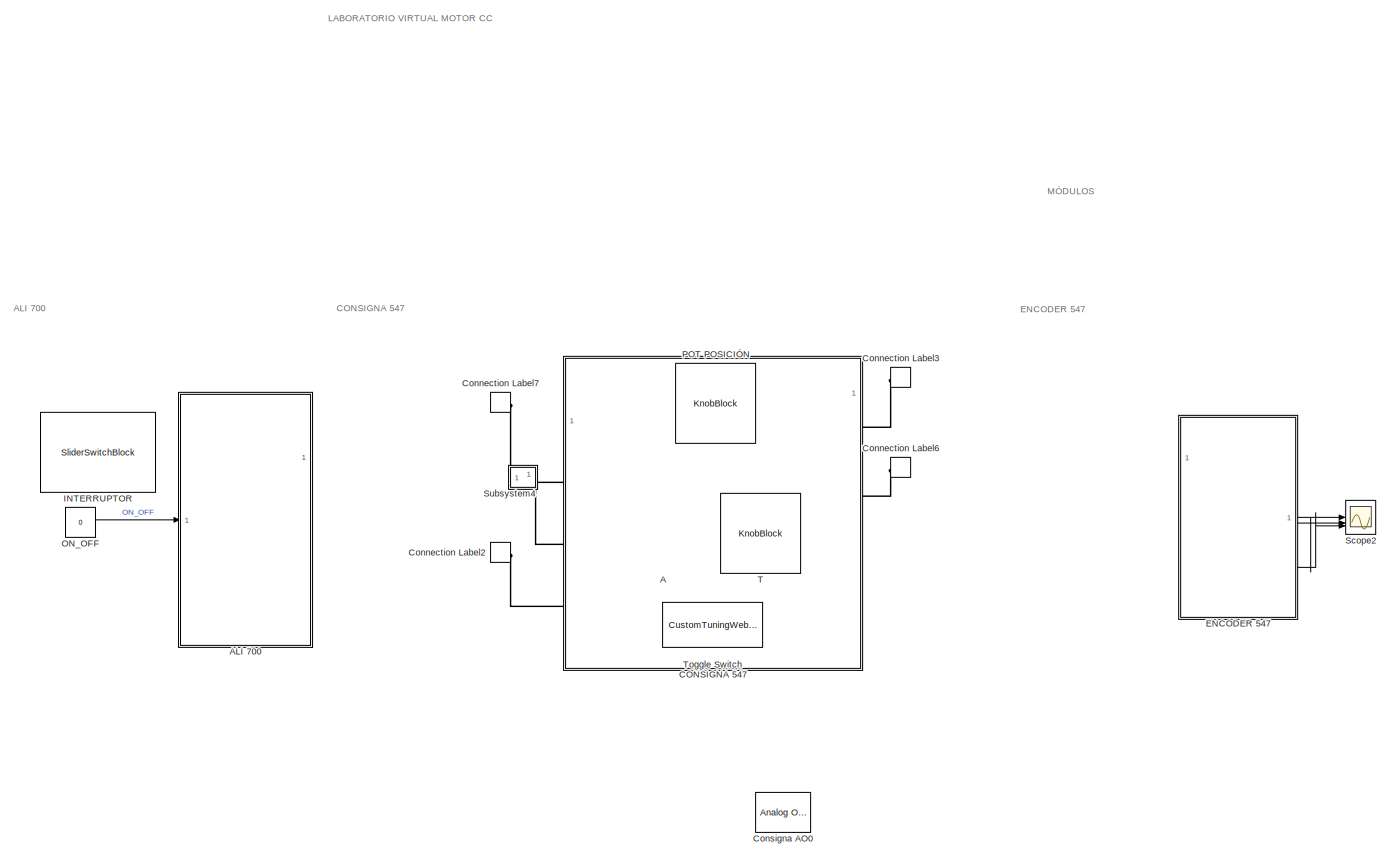
[diagram: root canvas - part 1/2, left side, full height]
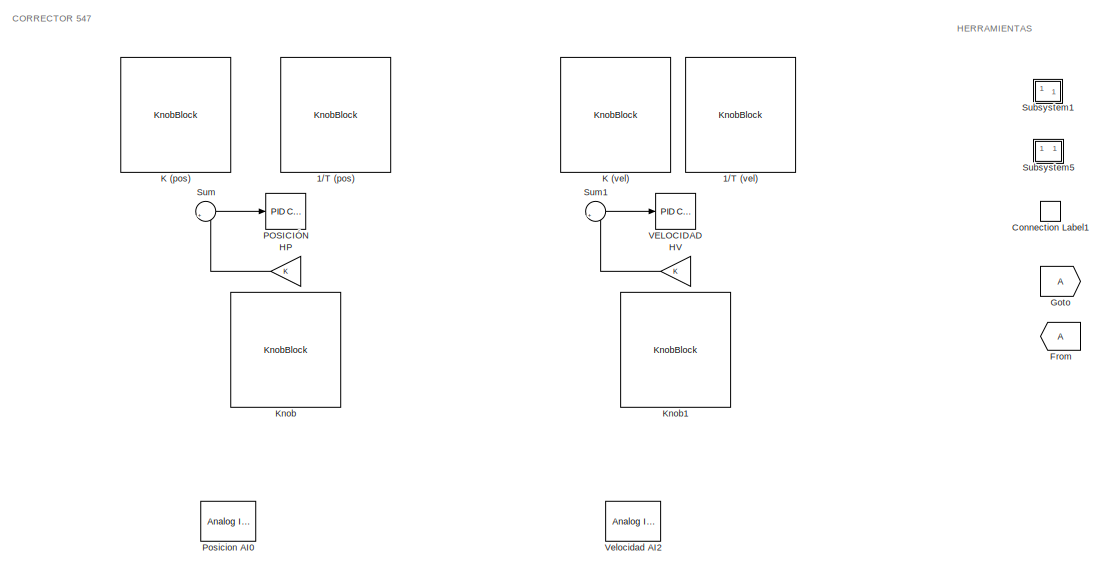
[diagram: root canvas - part 2/2, bottom right region]
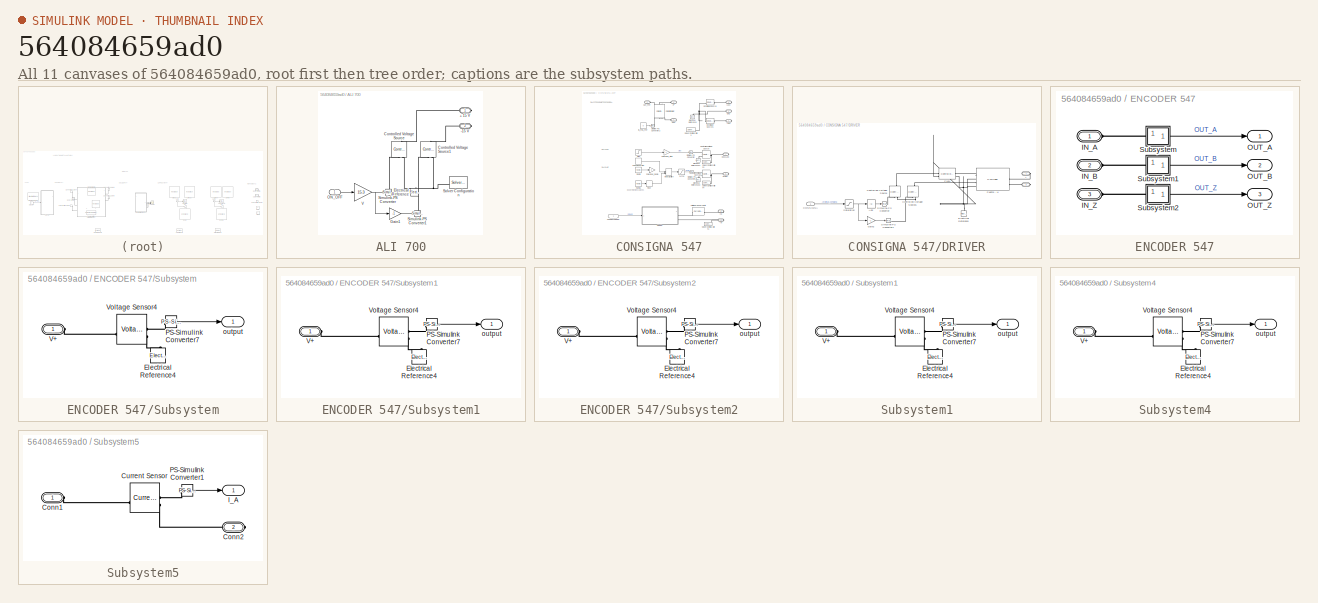
[diagram: thumbnail index - all 11 canvases of the model, root first then tree order]
MODEL slx_564084659ad0
KIND model
CONFIG AbsTol = auto
CONFIG EnableMultiTasking = off
CONFIG FixedStep = 0.0001
CONFIG MaxStep = 0.001
CONFIG MinStep = auto
CONFIG RelTol = auto
CONFIG SampleTimeConstraint = Unconstrained
CONFIG SolverName = VariableStepAuto
CONFIG StartTime = 0.0
CONFIG StopTime = 10
WORKSPACE source: mxarray member
WORKSPACE A = 5
WORKSPACE Frec = 1
WORKSPACE a = 1
BLOCK [KnobBlock] 1//T (pos)
  LabelPosition = Hide
  ScaleMax = 10
  TickInterval = 1
BLOCK [KnobBlock] 1//T (vel)
  LabelPosition = Hide
  ScaleMax = 10
  TickInterval = 1
BLOCK [KnobBlock] A
  LabelPosition = Hide
  ScaleMax = 10
  TickInterval = 1
BLOCK [SubSystem] ALI 700
BLOCK [PMIOPort] ALI 700/+ 15 V
  Side = Right
BLOCK [PMIOPort] ALI 700/-15 V
  Port = 2
  Side = Right
BLOCK [Reference] ALI 700/Controlled Voltage Source  REF=fl_lib/Electrical/Electrical Sources/Controlled Voltage
Source
  NameLocation = right
  SourceBlock = fl_lib/Electrical/Electrical Sources/Controlled Voltage\nSource
  SourceType = Controlled Voltage\nSource
BLOCK [Reference] ALI 700/Controlled Voltage Source1  REF=fl_lib/Electrical/Electrical Sources/Controlled Voltage
Source
  NameLocation = right
  SourceBlock = fl_lib/Electrical/Electrical Sources/Controlled Voltage\nSource
  SourceType = Controlled Voltage\nSource
BLOCK [Reference] ALI 700/Electrical Reference  REF=fl_lib/Electrical/Electrical Elements/Electrical Reference
  NameLocation = right
  SourceBlock = fl_lib/Electrical/Electrical Elements/Electrical Reference
  SourceType = Electrical Reference
BLOCK [Gain] ALI 700/Gain1
  Gain = -1
BLOCK [Inport] ALI 700/ON_OFF
BLOCK [Reference] ALI 700/Simulink-PS Converter  REF=nesl_utility/Simulink-PS
Converter
  SourceBlock = nesl_utility/Simulink-PS\nConverter
  SourceType = Simulink-PS\nConverter
BLOCK [Reference] ALI 700/Simulink-PS Converter1  REF=nesl_utility/Simulink-PS
Converter
  SourceBlock = nesl_utility/Simulink-PS\nConverter
  SourceType = Simulink-PS\nConverter
BLOCK [Reference] ALI 700/Solver Configuration  REF=nesl_utility/Solver
Configuration
  NameLocation = top
  SourceBlock = nesl_utility/Solver\nConfiguration
  SourceType = Solver\nConfiguration
BLOCK [Gain] ALI 700/V
  Gain = 15.3
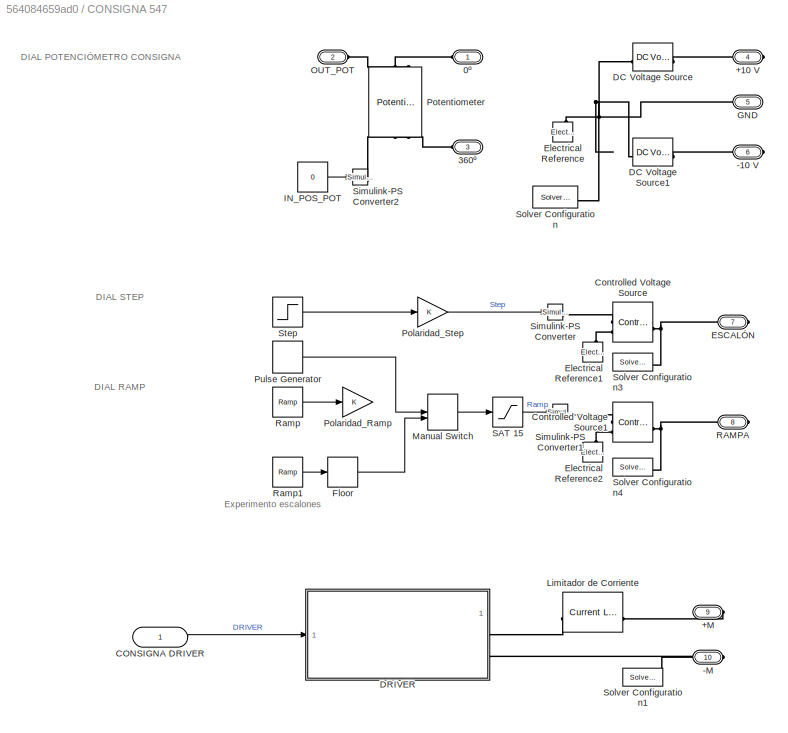
BLOCK [SubSystem] CONSIGNA 547
  PortSchema = {"entries":[{"content":{"sides":[{"content":{"connectorIds":["LConn1","LConn2","LConn3","In1"]},"type":"ConnectorPlacement.EquallySpacedRectSide","uuid":"4a8cfb57-dab5-486b-a591-dc2fea0d0b24"},{"content":{"connectorIds":["RConn1","RConn2","RConn3","RConn4","RConn5","RConn6","RConn7"],"side":"RIGHT"},"type":"ConnectorPlacement.EquallySpacedRectSide","uuid":"c23f5fb5-28b8-45c6-932c-b7e70ba2c44b"},{"...<+305ch>
BLOCK [PMIOPort] CONSIGNA 547/+10 V
  Port = 4
  Side = Right
BLOCK [PMIOPort] CONSIGNA 547/+M
  Port = 9
  Side = Right
BLOCK [PMIOPort] CONSIGNA 547/-10 V
  Port = 6
  Side = Right
BLOCK [PMIOPort] CONSIGNA 547/-M
  Port = 10
  Side = Right
BLOCK [PMIOPort] CONSIGNA 547/0º
  Side = Left
BLOCK [PMIOPort] CONSIGNA 547/360º
  Port = 3
  Side = Left
BLOCK [Inport] CONSIGNA 547/CONSIGNA  DRIVER
  IconDisplay = Signal name
BLOCK [Reference] CONSIGNA 547/Controlled Voltage Source  REF=fl_lib/Electrical/Electrical Sources/Controlled Voltage
Source
  SourceBlock = fl_lib/Electrical/Electrical Sources/Controlled Voltage\nSource
  SourceType = Controlled Voltage\nSource
BLOCK [Reference] CONSIGNA 547/Controlled Voltage Source1  REF=fl_lib/Electrical/Electrical Sources/Controlled Voltage
Source
  SourceBlock = fl_lib/Electrical/Electrical Sources/Controlled Voltage\nSource
  SourceType = Controlled Voltage\nSource
BLOCK [Reference] CONSIGNA 547/DC Voltage Source  REF=fl_lib/Electrical/Electrical Sources/DC Voltage Source
  SourceBlock = fl_lib/Electrical/Electrical Sources/DC Voltage Source
  SourceType = DC Voltage Source
BLOCK [Reference] CONSIGNA 547/DC Voltage Source1  REF=fl_lib/Electrical/Electrical Sources/DC Voltage Source
  SourceBlock = fl_lib/Electrical/Electrical Sources/DC Voltage Source
  SourceType = DC Voltage Source
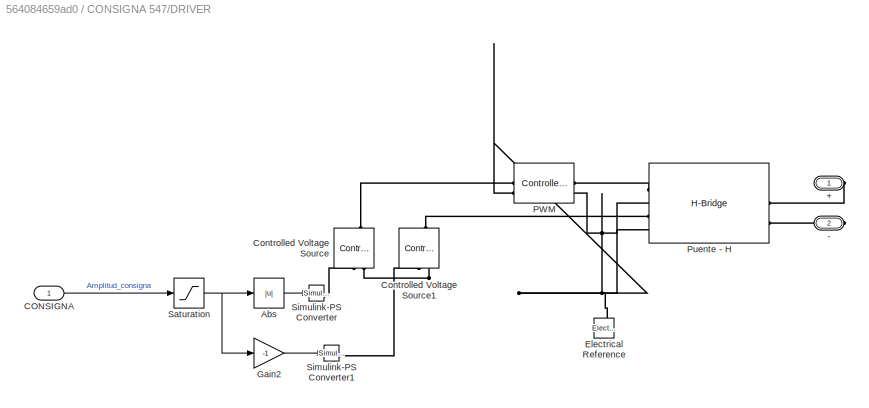
BLOCK [SubSystem] CONSIGNA 547/DRIVER
BLOCK [PMIOPort] CONSIGNA 547/DRIVER/+
  Side = Right
BLOCK [PMIOPort] CONSIGNA 547/DRIVER/-
  Port = 2
  Side = Right
BLOCK [Abs] CONSIGNA 547/DRIVER/Abs
  SaturateOnIntegerOverflow = off
BLOCK [Inport] CONSIGNA 547/DRIVER/CONSIGNA
BLOCK [Reference] CONSIGNA 547/DRIVER/Controlled Voltage Source  REF=fl_lib/Electrical/Electrical Sources/Controlled Voltage
Source
  NameLocation = right
  SourceBlock = fl_lib/Electrical/Electrical Sources/Controlled Voltage\nSource
  SourceType = Controlled Voltage\nSource
BLOCK [Reference] CONSIGNA 547/DRIVER/Controlled Voltage Source1  REF=fl_lib/Electrical/Electrical Sources/Controlled Voltage
Source
  NameLocation = right
  SourceBlock = fl_lib/Electrical/Electrical Sources/Controlled Voltage\nSource
  SourceType = Controlled Voltage\nSource
BLOCK [Reference] CONSIGNA 547/DRIVER/Electrical Reference  REF=fl_lib/Electrical/Electrical Elements/Electrical Reference
  NameLocation = right
  SourceBlock = fl_lib/Electrical/Electrical Elements/Electrical Reference
  SourceType = Electrical Reference
BLOCK [Gain] CONSIGNA 547/DRIVER/Gain2
  Gain = -1
BLOCK [Reference] CONSIGNA 547/DRIVER/PWM  REF=ee_lib/Integrated Circuits/Controlled PWM
Voltage
  NameLocation = top
  SourceBlock = ee_lib/Integrated Circuits/Controlled PWM\nVoltage
  SourceType = Controlled PWM\nVoltage
BLOCK [Reference] CONSIGNA 547/DRIVER/Puente - H  REF=ee_lib/Semiconductors &
Converters/Converters/H-Bridge
  NameLocation = top
  SourceBlock = ee_lib/Semiconductors &\nConverters/Converters/H-Bridge
  SourceType = H-Bridge
BLOCK [Saturate] CONSIGNA 547/DRIVER/Saturation
  LowerLimit = -PWM_sat
  UpperLimit = PWM_sat
BLOCK [Reference] CONSIGNA 547/DRIVER/Simulink-PS Converter  REF=nesl_utility/Simulink-PS
Converter
  SourceBlock = nesl_utility/Simulink-PS\nConverter
  SourceType = Simulink-PS\nConverter
BLOCK [Reference] CONSIGNA 547/DRIVER/Simulink-PS Converter1  REF=nesl_utility/Simulink-PS
Converter
  SourceBlock = nesl_utility/Simulink-PS\nConverter
  SourceType = Simulink-PS\nConverter
BLOCK [PMIOPort] CONSIGNA 547/ESCALÓN
  Port = 7
  Side = Right
BLOCK [Reference] CONSIGNA 547/Electrical Reference  REF=fl_lib/Electrical/Electrical Elements/Electrical Reference
  NameLocation = right
  SourceBlock = fl_lib/Electrical/Electrical Elements/Electrical Reference
  SourceType = Electrical Reference
BLOCK [Reference] CONSIGNA 547/Electrical Reference1  REF=fl_lib/Electrical/Electrical Elements/Electrical Reference
  NameLocation = right
  SourceBlock = fl_lib/Electrical/Electrical Elements/Electrical Reference
  SourceType = Electrical Reference
BLOCK [Reference] CONSIGNA 547/Electrical Reference2  REF=fl_lib/Electrical/Electrical Elements/Electrical Reference
  NameLocation = right
  SourceBlock = fl_lib/Electrical/Electrical Elements/Electrical Reference
  SourceType = Electrical Reference
BLOCK [Rounding] CONSIGNA 547/Floor
BLOCK [PMIOPort] CONSIGNA 547/GND
  Port = 5
  Side = Right
BLOCK [Constant] CONSIGNA 547/IN_POS_POT
  Value = 0
BLOCK [Reference] CONSIGNA 547/Limitador de Corriente  REF=ee_lib/Semiconductors &
Converters/Current Limiter
  NameLocation = top
  SourceBlock = ee_lib/Semiconductors &\nConverters/Current Limiter
  SourceType = Current Limiter
BLOCK [ManualSwitch] CONSIGNA 547/Manual Switch
BLOCK [PMIOPort] CONSIGNA 547/OUT_POT
  NameLocation = top
  Port = 2
  Side = Left
BLOCK [Gain] CONSIGNA 547/Polaridad_Ramp
BLOCK [Gain] CONSIGNA 547/Polaridad_Step
BLOCK [Reference] CONSIGNA 547/Potentiometer  REF=ee_lib/Passive/Potentiometer
  NameLocation = left
  SourceBlock = ee_lib/Passive/Potentiometer
  SourceType = Potentiometer
BLOCK [DiscretePulseGenerator] CONSIGNA 547/Pulse Generator
  Amplitude = 5
  Period = 3
  PulseType = Time based
  PulseWidth = 50
BLOCK [PMIOPort] CONSIGNA 547/RAMPA
  Port = 8
  Side = Right
BLOCK [Reference] CONSIGNA 547/Ramp  REF=simulink/Sources/Ramp
  SourceBlock = simulink/Sources/Ramp
  SourceType = Ramp
BLOCK [Reference] CONSIGNA 547/Ramp1  REF=simulink/Sources/Ramp
  SourceBlock = simulink/Sources/Ramp
  SourceType = Ramp
BLOCK [Saturate] CONSIGNA 547/SAT 15
  LowerLimit = -15
  UpperLimit = 15
BLOCK [Reference] CONSIGNA 547/Simulink-PS Converter  REF=nesl_utility/Simulink-PS
Converter
  SourceBlock = nesl_utility/Simulink-PS\nConverter
  SourceType = Simulink-PS\nConverter
BLOCK [Reference] CONSIGNA 547/Simulink-PS Converter1  REF=nesl_utility/Simulink-PS
Converter
  SourceBlock = nesl_utility/Simulink-PS\nConverter
  SourceType = Simulink-PS\nConverter
BLOCK [Reference] CONSIGNA 547/Simulink-PS Converter2  REF=nesl_utility/Simulink-PS
Converter
  SourceBlock = nesl_utility/Simulink-PS\nConverter
  SourceType = Simulink-PS\nConverter
BLOCK [Reference] CONSIGNA 547/Solver Configuration  REF=nesl_utility/Solver
Configuration
  SourceBlock = nesl_utility/Solver\nConfiguration
  SourceType = Solver\nConfiguration
BLOCK [Reference] CONSIGNA 547/Solver Configuration1  REF=nesl_utility/Solver
Configuration
  SourceBlock = nesl_utility/Solver\nConfiguration
  SourceType = Solver\nConfiguration
BLOCK [Reference] CONSIGNA 547/Solver Configuration3  REF=nesl_utility/Solver
Configuration
  SourceBlock = nesl_utility/Solver\nConfiguration
  SourceType = Solver\nConfiguration
BLOCK [Reference] CONSIGNA 547/Solver Configuration4  REF=nesl_utility/Solver
Configuration
  SourceBlock = nesl_utility/Solver\nConfiguration
  SourceType = Solver\nConfiguration
BLOCK [Step] CONSIGNA 547/Step
  After = 4.743883260091146
  SampleTime = 0
BLOCK [ConnectionLabel] Connection Label1
BLOCK [ConnectionLabel] Connection Label2
  Label = pot_pos_positivo
  NameLocation = top
BLOCK [ConnectionLabel] Connection Label3
  Label = pot_pos_positivo
BLOCK [ConnectionLabel] Connection Label6
  Label = pot_pos_negativo
BLOCK [ConnectionLabel] Connection Label7
  Label = pot_pos_negativo
  NameLocation = top
BLOCK [Reference] Consigna AO0  REF=sldrtlib/Analog Output
  AttributesFormatString = National Instruments\nPCIe-6321 [auto]
  SourceBlock = sldrtlib/Analog Output
  SourceType = Simulink Desktop Real-Time Analog Output
BLOCK [SubSystem] ENCODER 547
BLOCK [PMIOPort] ENCODER 547/IN_A
  Side = Left
BLOCK [PMIOPort] ENCODER 547/IN_B
  Port = 2
  Side = Left
BLOCK [PMIOPort] ENCODER 547/IN_Z
  Port = 3
  Side = Left
BLOCK [Outport] ENCODER 547/OUT_A
  NameLocation = right
BLOCK [Outport] ENCODER 547/OUT_B
  NameLocation = right
  Port = 2
BLOCK [Outport] ENCODER 547/OUT_Z
  NameLocation = right
  Port = 3
BLOCK [SubSystem] ENCODER 547/Subsystem
BLOCK [Reference] ENCODER 547/Subsystem/Electrical Reference4  REF=fl_lib/Electrical/Electrical Elements/Electrical Reference
  NameLocation = right
  SourceBlock = fl_lib/Electrical/Electrical Elements/Electrical Reference
  SourceType = Electrical Reference
BLOCK [Reference] ENCODER 547/Subsystem/PS-Simulink Converter7  REF=nesl_utility/PS-Simulink
Converter
  SourceBlock = nesl_utility/PS-Simulink\nConverter
  SourceType = PS-Simulink\nConverter
BLOCK [PMIOPort] ENCODER 547/Subsystem/V+
  Side = Left
BLOCK [Reference] ENCODER 547/Subsystem/Voltage Sensor4  REF=fl_lib/Electrical/Electrical Sensors/Voltage Sensor
  NameLocation = top
  SourceBlock = fl_lib/Electrical/Electrical Sensors/Voltage Sensor
  SourceType = Voltage Sensor
BLOCK [Outport] ENCODER 547/Subsystem/output
BLOCK [SubSystem] ENCODER 547/Subsystem1
BLOCK [Reference] ENCODER 547/Subsystem1/Electrical Reference4  REF=fl_lib/Electrical/Electrical Elements/Electrical Reference
  NameLocation = right
  SourceBlock = fl_lib/Electrical/Electrical Elements/Electrical Reference
  SourceType = Electrical Reference
BLOCK [Reference] ENCODER 547/Subsystem1/PS-Simulink Converter7  REF=nesl_utility/PS-Simulink
Converter
  SourceBlock = nesl_utility/PS-Simulink\nConverter
  SourceType = PS-Simulink\nConverter
BLOCK [PMIOPort] ENCODER 547/Subsystem1/V+
  Side = Left
BLOCK [Reference] ENCODER 547/Subsystem1/Voltage Sensor4  REF=fl_lib/Electrical/Electrical Sensors/Voltage Sensor
  NameLocation = top
  SourceBlock = fl_lib/Electrical/Electrical Sensors/Voltage Sensor
  SourceType = Voltage Sensor
BLOCK [Outport] ENCODER 547/Subsystem1/output
BLOCK [SubSystem] ENCODER 547/Subsystem2
BLOCK [Reference] ENCODER 547/Subsystem2/Electrical Reference4  REF=fl_lib/Electrical/Electrical Elements/Electrical Reference
  NameLocation = right
  SourceBlock = fl_lib/Electrical/Electrical Elements/Electrical Reference
  SourceType = Electrical Reference
BLOCK [Reference] ENCODER 547/Subsystem2/PS-Simulink Converter7  REF=nesl_utility/PS-Simulink
Converter
  SourceBlock = nesl_utility/PS-Simulink\nConverter
  SourceType = PS-Simulink\nConverter
BLOCK [PMIOPort] ENCODER 547/Subsystem2/V+
  Side = Left
BLOCK [Reference] ENCODER 547/Subsystem2/Voltage Sensor4  REF=fl_lib/Electrical/Electrical Sensors/Voltage Sensor
  NameLocation = top
  SourceBlock = fl_lib/Electrical/Electrical Sensors/Voltage Sensor
  SourceType = Voltage Sensor
BLOCK [Outport] ENCODER 547/Subsystem2/output
BLOCK [From] From
BLOCK [Goto] Goto
BLOCK [Gain] HP
BLOCK [Gain] HV
BLOCK [SliderSwitchBlock] INTERRUPTOR
  LabelPosition = Hide
BLOCK [KnobBlock] K (pos)
  LabelPosition = Hide
  ScaleMax = 10
  TickInterval = 1
BLOCK [KnobBlock] K (vel)
  LabelPosition = Hide
  ScaleMax = 10
  TickInterval = 1
BLOCK [KnobBlock] Knob
  LabelPosition = Hide
  ScaleMax = 1
  TickInterval = 0.1
BLOCK [KnobBlock] Knob1
  LabelPosition = Hide
  ScaleMax = 2
  TickInterval = 0.2
BLOCK [Constant] ON_OFF
  Value = 0
BLOCK [Reference] POSICIÓN  REF=slpidlib/PID Controller
  LibrarySourceBlock = simulink/Continuous/PID Controller
  SourceBlock = slpidlib/PID Controller
  SourceType = PID 1dof
BLOCK [KnobBlock] POT POSICIÓN
  LabelPosition = Hide
  ScaleMax = 360
  TickInterval = 20
BLOCK [Reference] Posicion AI0  REF=sldrtlib/Analog Input
  AttributesFormatString = National Instruments\nPCIe-6321 [auto]
  SourceBlock = sldrtlib/Analog Input
  SourceType = Simulink Desktop Real-Time Analog Input
BLOCK [Scope] Scope2
  Floating = off
  NumInputPorts = 3
  ScopeSpecificationString = Simulink.scopes.TimeScopeBlockCfg('CurrentConfiguration', extmgr.ConfigurationSet(extmgr.Configuration('Core','General UI',true),extmgr.Configuration('Core','Source UI',true),extmgr.Configuration('Sources','WiredSimulink',true,'DataLoggingVariableName','ScopeData1'),extmgr.Configuration('Visuals','Time Domain',true,'SerializedDisplays',{struct('MinYLimReal','-0.04325','MaxYLimReal','5.02351','YLab...<+1543ch>
BLOCK [SubSystem] Subsystem1
BLOCK [Reference] Subsystem1/Electrical Reference4  REF=fl_lib/Electrical/Electrical Elements/Electrical Reference
  NameLocation = right
  SourceBlock = fl_lib/Electrical/Electrical Elements/Electrical Reference
  SourceType = Electrical Reference
BLOCK [Reference] Subsystem1/PS-Simulink Converter7  REF=nesl_utility/PS-Simulink
Converter
  SourceBlock = nesl_utility/PS-Simulink\nConverter
  SourceType = PS-Simulink\nConverter
BLOCK [PMIOPort] Subsystem1/V+
  Side = Left
BLOCK [Reference] Subsystem1/Voltage Sensor4  REF=fl_lib/Electrical/Electrical Sensors/Voltage Sensor
  NameLocation = top
  SourceBlock = fl_lib/Electrical/Electrical Sensors/Voltage Sensor
  SourceType = Voltage Sensor
BLOCK [Outport] Subsystem1/output
BLOCK [SubSystem] Subsystem4
  NameLocation = top
BLOCK [Reference] Subsystem4/Electrical Reference4  REF=fl_lib/Electrical/Electrical Elements/Electrical Reference
  NameLocation = right
  SourceBlock = fl_lib/Electrical/Electrical Elements/Electrical Reference
  SourceType = Electrical Reference
BLOCK [Reference] Subsystem4/PS-Simulink Converter7  REF=nesl_utility/PS-Simulink
Converter
  SourceBlock = nesl_utility/PS-Simulink\nConverter
  SourceType = PS-Simulink\nConverter
BLOCK [PMIOPort] Subsystem4/V+
  Side = Left
BLOCK [Reference] Subsystem4/Voltage Sensor4  REF=fl_lib/Electrical/Electrical Sensors/Voltage Sensor
  NameLocation = top
  SourceBlock = fl_lib/Electrical/Electrical Sensors/Voltage Sensor
  SourceType = Voltage Sensor
BLOCK [Outport] Subsystem4/output
BLOCK [SubSystem] Subsystem5
  PortSchema = {"entries":[{"content":{"sides":[{"content":{"connectorIds":["LConn1"]},"type":"ConnectorPlacement.EquallySpacedRectSide","uuid":"5f01206e-22b9-410b-acd2-df307548d4ec"},{"content":{"connectorIds":["RConn1"],"side":"RIGHT"},"type":"ConnectorPlacement.EquallySpacedRectSide","uuid":"8e9acb11-d78e-4e8a-8f36-3c08acadde04"},{"content":{"side":"TOP"},"type":"ConnectorPlacement.EquallySpacedRectSide","uui...<+377ch>
BLOCK [PMIOPort] Subsystem5/Conn1
  Side = Left
BLOCK [PMIOPort] Subsystem5/Conn2
  Port = 2
  Side = Right
BLOCK [Reference] Subsystem5/Current Sensor  REF=fl_lib/Electrical/Electrical Sensors/Current Sensor
  SourceBlock = fl_lib/Electrical/Electrical Sensors/Current Sensor
  SourceType = Current Sensor
BLOCK [Outport] Subsystem5/I_A
BLOCK [Reference] Subsystem5/PS-Simulink Converter1  REF=nesl_utility/PS-Simulink
Converter
  SourceBlock = nesl_utility/PS-Simulink\nConverter
  SourceType = PS-Simulink\nConverter
BLOCK [Sum] Sum
  Inputs = |+-
BLOCK [Sum] Sum1
  Inputs = |+-
BLOCK [KnobBlock] T
  LabelPosition = Hide
  ScaleMax = 10
  TickInterval = 1
BLOCK [CustomTuningWebBlock] Toggle Switch
  Configuration = {"components":[{"name":"CustomSwitchStateComponent","settings":{"position":[0,0,1,1],"showAllLabels":1,"states":[{"HitRegion":{"position":[0.03,0,0.518,1]},"Image":{"position":[0.24928571428571428,0,1,0.5014285714285714],"size":[1,0.5014285714285714],"src":"data:image\/svg+xml;base64,PHN2ZyB4bWxucz0iaHR0cDovL3d3dy53My5vcmcvMjAwMC9zdmciIHhtbG5zOnhsaW5rPSJodHRwOi8vd3d3LnczLm9yZy8xOTk5L3hsaW5rIiB2aWV...<+9132ch>
  LabelPosition = Hide
  NameLocation = left
  ShowInitialText = on
BLOCK [Reference] VELOCIDAD  REF=slpidlib/PID Controller
  LibrarySourceBlock = simulink/Continuous/PID Controller
  SourceBlock = slpidlib/PID Controller
  SourceType = PID 1dof
BLOCK [Reference] Velocidad AI2  REF=sldrtlib/Analog Input
  AttributesFormatString = National Instruments\nPCIe-6321 [auto]
  SourceBlock = sldrtlib/Analog Input
  SourceType = Simulink Desktop Real-Time Analog Input
ANNOTATION (root): LABORATORIO VIRTUAL MOTOR CC
ANNOTATION (root): MÓDULOS
ANNOTATION (root): HERRAMIENTAS
ANNOTATION (root): ALI 700
ANNOTATION (root): CONSIGNA 547
ANNOTATION (root): CORRECTOR 547
ANNOTATION (root): ENCODER 547
ANNOTATION CONSIGNA 547: DIAL POTENCIÓMETRO CONSIGNA
ANNOTATION CONSIGNA 547: DIAL RAMP
ANNOTATION CONSIGNA 547: DIAL STEP
ANNOTATION CONSIGNA 547: Experimento escalones
LINE ALI 700/Gain1:1 -> ALI 700/Simulink-PS Converter1:1
LINE ALI 700/ON_OFF:1 -> ALI 700/V:1
NET ALI 700/V:1 -> ALI 700/Gain1:1, ALI 700/Simulink-PS Converter:1
LINE CONSIGNA 547/CONSIGNA  DRIVER:1 -> CONSIGNA 547/DRIVER:1
LINE CONSIGNA 547/DRIVER/Abs:1 -> CONSIGNA 547/DRIVER/Simulink-PS Converter:1
LINE CONSIGNA 547/DRIVER/CONSIGNA:1 -> CONSIGNA 547/DRIVER/Saturation:1
LINE CONSIGNA 547/DRIVER/Gain2:1 -> CONSIGNA 547/DRIVER/Simulink-PS Converter1:1
NET CONSIGNA 547/DRIVER/Saturation:1 -> CONSIGNA 547/DRIVER/Abs:1, CONSIGNA 547/DRIVER/Gain2:1
LINE CONSIGNA 547/Floor:1 -> CONSIGNA 547/Manual Switch:2
LINE CONSIGNA 547/IN_POS_POT:1 -> CONSIGNA 547/Simulink-PS Converter2:1
LINE CONSIGNA 547/Manual Switch:1 -> CONSIGNA 547/SAT 15:1
LINE CONSIGNA 547/Polaridad_Step:1 -> CONSIGNA 547/Simulink-PS Converter:1
LINE CONSIGNA 547/Pulse Generator:1 -> CONSIGNA 547/Manual Switch:1
LINE CONSIGNA 547/Ramp1:1 -> CONSIGNA 547/Floor:1
LINE CONSIGNA 547/Ramp:1 -> CONSIGNA 547/Polaridad_Ramp:1
LINE CONSIGNA 547/SAT 15:1 -> CONSIGNA 547/Simulink-PS Converter1:1
LINE CONSIGNA 547/Step:1 -> CONSIGNA 547/Polaridad_Step:1
LINE ENCODER 547/Subsystem/PS-Simulink Converter7:1 -> ENCODER 547/Subsystem/output:1
LINE ENCODER 547/Subsystem1/PS-Simulink Converter7:1 -> ENCODER 547/Subsystem1/output:1
LINE ENCODER 547/Subsystem1:1 -> ENCODER 547/OUT_B:1
LINE ENCODER 547/Subsystem2/PS-Simulink Converter7:1 -> ENCODER 547/Subsystem2/output:1
LINE ENCODER 547/Subsystem2:1 -> ENCODER 547/OUT_Z:1
LINE ENCODER 547/Subsystem:1 -> ENCODER 547/OUT_A:1
LINE ENCODER 547:1 -> Scope2:1
LINE ENCODER 547:2 -> Scope2:2
LINE ENCODER 547:3 -> Scope2:3
LINE HP:1 -> Sum:2
LINE HV:1 -> Sum1:2
LINE ON_OFF:1 -> ALI 700:1
LINE Subsystem1/PS-Simulink Converter7:1 -> Subsystem1/output:1
LINE Subsystem4/PS-Simulink Converter7:1 -> Subsystem4/output:1
LINE Subsystem5/PS-Simulink Converter1:1 -> Subsystem5/I_A:1
LINE Sum1:1 -> VELOCIDAD:1
LINE Sum:1 -> POSICIÓN:1
PLINE ALI 700/+ 15 V:RConn1 -- ALI 700/Controlled Voltage Source:LConn1
PLINE ALI 700/-15 V:RConn1 -- ALI 700/Controlled Voltage Source1:LConn1
PLINE ALI 700/Controlled Voltage Source1:RConn1 -- ALI 700/Simulink-PS Converter1:RConn1
PNET net1: ALI 700/Controlled Voltage Source1:RConn2 -- ALI 700/Controlled Voltage Source:RConn2 -- ALI 700/Electrical Reference:LConn1 -- ALI 700/Solver Configuration:RConn1
PLINE ALI 700/Controlled Voltage Source:RConn1 -- ALI 700/Simulink-PS Converter:RConn1
PLINE CONSIGNA 547/+10 V:RConn1 -- CONSIGNA 547/DC Voltage Source:LConn1
PLINE CONSIGNA 547/+M:RConn1 -- CONSIGNA 547/Limitador de Corriente:RConn1
PLINE CONSIGNA 547/-10 V:RConn1 -- CONSIGNA 547/DC Voltage Source1:LConn1
PNET net2: CONSIGNA 547/-M:RConn1 -- CONSIGNA 547/DRIVER:RConn2 -- CONSIGNA 547/Solver Configuration1:RConn1
PLINE CONSIGNA 547/0º:RConn1 -- CONSIGNA 547/Potentiometer:LConn1
PLINE CONSIGNA 547/360º:RConn1 -- CONSIGNA 547/Potentiometer:RConn1
PNET net3: CONSIGNA 547/Controlled Voltage Source1:LConn1 -- CONSIGNA 547/RAMPA:RConn1 -- CONSIGNA 547/Solver Configuration4:RConn1
PLINE CONSIGNA 547/Controlled Voltage Source1:RConn1 -- CONSIGNA 547/Simulink-PS Converter1:RConn1
PLINE CONSIGNA 547/Controlled Voltage Source1:RConn2 -- CONSIGNA 547/Electrical Reference2:LConn1
PNET net4: CONSIGNA 547/Controlled Voltage Source:LConn1 -- CONSIGNA 547/ESCALÓN:RConn1 -- CONSIGNA 547/Solver Configuration3:RConn1
PLINE CONSIGNA 547/Controlled Voltage Source:RConn1 -- CONSIGNA 547/Simulink-PS Converter:RConn1
PLINE CONSIGNA 547/Controlled Voltage Source:RConn2 -- CONSIGNA 547/Electrical Reference1:LConn1
PNET net5: CONSIGNA 547/DC Voltage Source1:RConn1 -- CONSIGNA 547/DC Voltage Source:RConn1 -- CONSIGNA 547/Electrical Reference:LConn1 -- CONSIGNA 547/GND:RConn1 -- CONSIGNA 547/Solver Configuration:RConn1
PLINE CONSIGNA 547/DRIVER/+:RConn1 -- CONSIGNA 547/DRIVER/Puente - H:RConn1
PLINE CONSIGNA 547/DRIVER/-:RConn1 -- CONSIGNA 547/DRIVER/Puente - H:RConn2
PLINE CONSIGNA 547/DRIVER/Controlled Voltage Source1:LConn1 -- CONSIGNA 547/DRIVER/Puente - H:LConn3
PLINE CONSIGNA 547/DRIVER/Controlled Voltage Source1:RConn1 -- CONSIGNA 547/DRIVER/Simulink-PS Converter1:RConn1
PNET net6: CONSIGNA 547/DRIVER/Controlled Voltage Source1:RConn2 -- CONSIGNA 547/DRIVER/Controlled Voltage Source:RConn2 -- CONSIGNA 547/DRIVER/Electrical Reference:LConn1 -- CONSIGNA 547/DRIVER/PWM:LConn2 -- CONSIGNA 547/DRIVER/PWM:RConn2 -- CONSIGNA 547/DRIVER/Puente - H:LConn2 -- CONSIGNA 547/DRIVER/Puente - H:LConn4
PLINE CONSIGNA 547/DRIVER/Controlled Voltage Source:LConn1 -- CONSIGNA 547/DRIVER/PWM:LConn1
PLINE CONSIGNA 547/DRIVER/Controlled Voltage Source:RConn1 -- CONSIGNA 547/DRIVER/Simulink-PS Converter:RConn1
PLINE CONSIGNA 547/DRIVER/PWM:RConn1 -- CONSIGNA 547/DRIVER/Puente - H:LConn1
PLINE CONSIGNA 547/DRIVER:RConn1 -- CONSIGNA 547/Limitador de Corriente:LConn1
PLINE CONSIGNA 547/OUT_POT:RConn1 -- CONSIGNA 547/Potentiometer:LConn2
PLINE CONSIGNA 547/Potentiometer:RConn2 -- CONSIGNA 547/Simulink-PS Converter2:RConn1
PLINE CONSIGNA 547:LConn1 -- Connection Label7:LConn1
PLINE CONSIGNA 547:LConn2 -- Subsystem4:LConn1
PLINE CONSIGNA 547:LConn3 -- Connection Label2:LConn1
PLINE CONSIGNA 547:RConn1 -- Connection Label3:LConn1
PLINE CONSIGNA 547:RConn3 -- Connection Label6:LConn1
PLINE ENCODER 547/IN_A:RConn1 -- ENCODER 547/Subsystem:LConn1
PLINE ENCODER 547/IN_B:RConn1 -- ENCODER 547/Subsystem1:LConn1
PLINE ENCODER 547/IN_Z:RConn1 -- ENCODER 547/Subsystem2:LConn1
PLINE ENCODER 547/Subsystem/Electrical Reference4:LConn1 -- ENCODER 547/Subsystem/Voltage Sensor4:RConn2
PLINE ENCODER 547/Subsystem/PS-Simulink Converter7:LConn1 -- ENCODER 547/Subsystem/Voltage Sensor4:RConn1
PLINE ENCODER 547/Subsystem/V+:RConn1 -- ENCODER 547/Subsystem/Voltage Sensor4:LConn1
PLINE ENCODER 547/Subsystem1/Electrical Reference4:LConn1 -- ENCODER 547/Subsystem1/Voltage Sensor4:RConn2
PLINE ENCODER 547/Subsystem1/PS-Simulink Converter7:LConn1 -- ENCODER 547/Subsystem1/Voltage Sensor4:RConn1
PLINE ENCODER 547/Subsystem1/V+:RConn1 -- ENCODER 547/Subsystem1/Voltage Sensor4:LConn1
PLINE ENCODER 547/Subsystem2/Electrical Reference4:LConn1 -- ENCODER 547/Subsystem2/Voltage Sensor4:RConn2
PLINE ENCODER 547/Subsystem2/PS-Simulink Converter7:LConn1 -- ENCODER 547/Subsystem2/Voltage Sensor4:RConn1
PLINE ENCODER 547/Subsystem2/V+:RConn1 -- ENCODER 547/Subsystem2/Voltage Sensor4:LConn1
PLINE Subsystem1/Electrical Reference4:LConn1 -- Subsystem1/Voltage Sensor4:RConn2
PLINE Subsystem1/PS-Simulink Converter7:LConn1 -- Subsystem1/Voltage Sensor4:RConn1
PLINE Subsystem1/V+:RConn1 -- Subsystem1/Voltage Sensor4:LConn1
PLINE Subsystem4/Electrical Reference4:LConn1 -- Subsystem4/Voltage Sensor4:RConn2
PLINE Subsystem4/PS-Simulink Converter7:LConn1 -- Subsystem4/Voltage Sensor4:RConn1
PLINE Subsystem4/V+:RConn1 -- Subsystem4/Voltage Sensor4:LConn1
PLINE Subsystem5/Conn1:RConn1 -- Subsystem5/Current Sensor:LConn1
PLINE Subsystem5/Conn2:RConn1 -- Subsystem5/Current Sensor:RConn2
PLINE Subsystem5/Current Sensor:RConn1 -- Subsystem5/PS-Simulink Converter1:LConn1
note: NET lines group one-source signal fan-out (src -> all destinations, sorted); 1:1 wires keep LINE; PNET lines group multi-terminal physical nets as a canonical sorted terminal list (undirected conserving connections); 2-terminal nets keep the pairwise PLINE form
